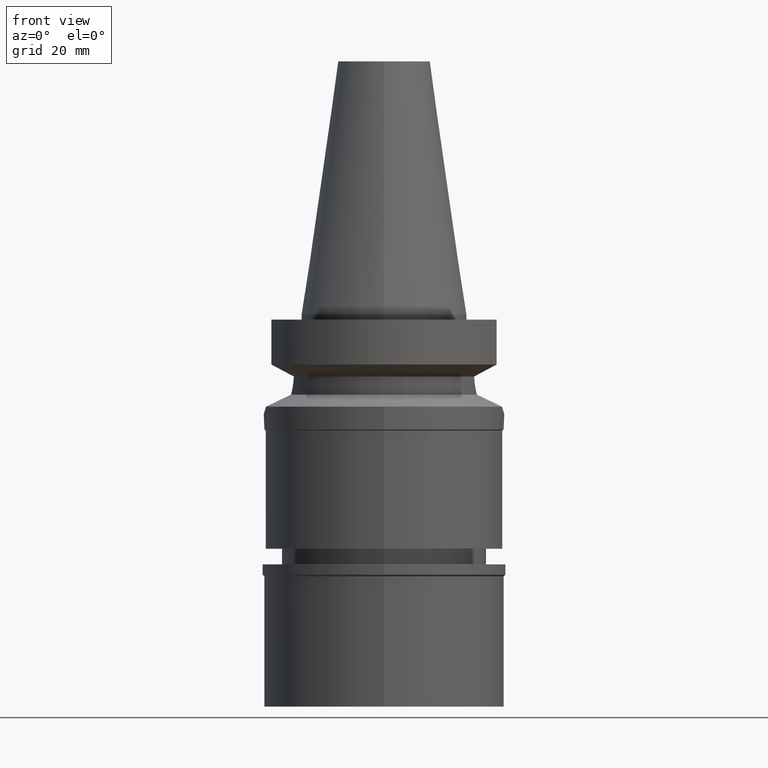
[diagram: clean part render]
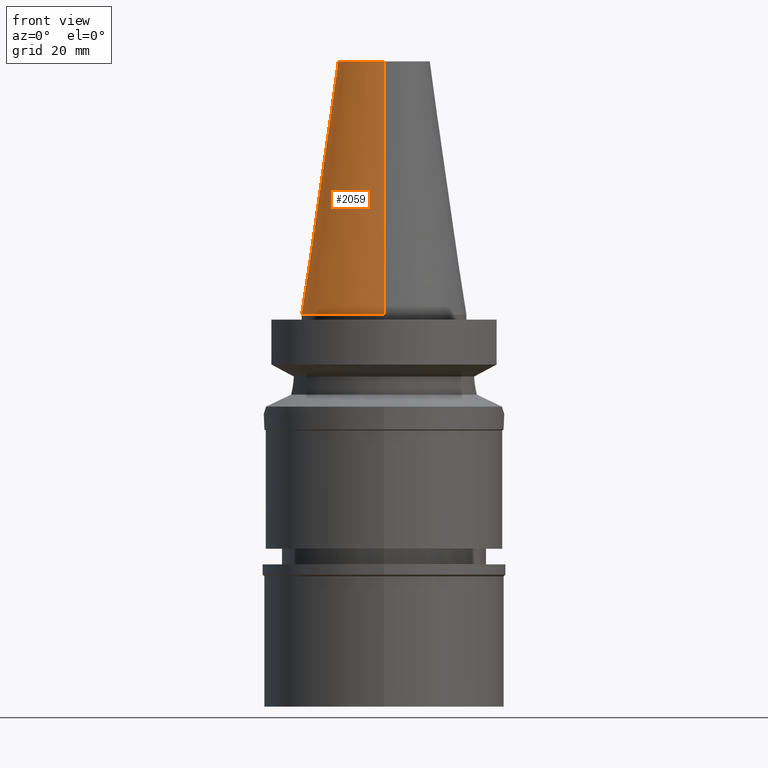
[diagram: same view with one face highlighted and labeled with its STEP entity id]
A machine part, front view. The second image highlights one B-rep face of the part: STEP entity #2059.
In plain terms, the highlighted conical surface has half-angle 8.297 deg.
Its self-contained STEP definition (entity closure, byte-faithful):
#4 = AXIS2_PLACEMENT_3D ( 'NONE', #77, #325, #524 ) ;
#22 = VERTEX_POINT ( 'NONE', #2491 ) ;
#28 = LINE ( 'NONE', #953, #2293 ) ;
#77 = CARTESIAN_POINT ( 'NONE',  ( 0.0000000000000000000, 0.0000000000000000000, -3.410605131648000255E-13 ) ) ;
#124 = AXIS2_PLACEMENT_3D ( 'NONE', #490, #1642, #217 ) ;
#145 = ORIENTED_EDGE ( 'NONE', *, *, #821, .F. ) ;
#211 = CARTESIAN_POINT ( 'NONE',  ( 0.0000000000000000000, 0.0000000000000000000, 24.19999999999999929 ) ) ;
#217 = DIRECTION ( 'NONE',  ( 0.0000000000000000000, -1.000000000000000000, 0.0000000000000000000 ) ) ;
#282 = EDGE_CURVE ( 'NONE', #2288, #22, #2459, .T. ) ;
#325 = DIRECTION ( 'NONE',  ( 0.0000000000000000000, 0.0000000000000000000, -1.000000000000000000 ) ) ;
#402 = LINE ( 'NONE', #1355, #2257 ) ;
#434 = CARTESIAN_POINT ( 'NONE',  ( 0.0000000000000000000, 15.87500000000000000, -1.527666881883999820E-13 ) ) ;
#465 = DIRECTION ( 'NONE',  ( 0.0000000000000000000, 0.1443043893539925626, -0.9895333461855498891 ) ) ;
#490 = CARTESIAN_POINT ( 'NONE',  ( 0.0000000000000000000, 0.0000000000000000000, 48.39999999999999858 ) ) ;
#524 = DIRECTION ( 'NONE',  ( 0.0000000000000000000, -1.000000000000000000, 0.0000000000000000000 ) ) ;
#708 = CARTESIAN_POINT ( 'NONE',  ( 0.0000000000000000000, -15.87500000000000000, -1.527666881883999820E-13 ) ) ;
#821 = EDGE_CURVE ( 'NONE', #2288, #2092, #402, .T. ) ;
#945 = DIRECTION ( 'NONE',  ( 0.0000000000000000000, 0.0000000000000000000, -1.000000000000000000 ) ) ;
#953 = CARTESIAN_POINT ( 'NONE',  ( 0.0000000000000000000, 8.816791732783000768, 48.39999999999999858 ) ) ;
#1159 = DIRECTION ( 'NONE',  ( 0.0000000000000000000, -0.1443043893539925626, -0.9895333461855498891 ) ) ;
#1172 = AXIS2_PLACEMENT_3D ( 'NONE', #211, #945, #1872 ) ;
#1355 = CARTESIAN_POINT ( 'NONE',  ( 0.0000000000000000000, -8.816791732783000768, 48.39999999999999858 ) ) ;
#1465 = CONICAL_SURFACE ( 'NONE', #1172, 12.34589586639000025, 0.1448099680379422438 ) ;
#1529 = EDGE_CURVE ( 'NONE', #2092, #1906, #1696, .T. ) ;
#1642 = DIRECTION ( 'NONE',  ( 0.0000000000000000000, 0.0000000000000000000, -1.000000000000000000 ) ) ;
#1696 = CIRCLE ( 'NONE', #4, 15.87500000000000000 ) ;
#1872 = DIRECTION ( 'NONE',  ( 0.0000000000000000000, -1.000000000000000000, 0.0000000000000000000 ) ) ;
#1906 = VERTEX_POINT ( 'NONE', #434 ) ;
#1928 = ORIENTED_EDGE ( 'NONE', *, *, #282, .T. ) ;
#1939 = CARTESIAN_POINT ( 'NONE',  ( 0.0000000000000000000, -8.816791732783000768, 48.39999999999999858 ) ) ;
#2057 = FACE_OUTER_BOUND ( 'NONE', #2904, .T. ) ;
#2059 = ADVANCED_FACE ( 'NONE', ( #2057 ), #1465, .T. ) ;
#2092 = VERTEX_POINT ( 'NONE', #708 ) ;
#2228 = EDGE_CURVE ( 'NONE', #22, #1906, #28, .T. ) ;
#2257 = VECTOR ( 'NONE', #1159, 1000.000000000000114 ) ;
#2288 = VERTEX_POINT ( 'NONE', #1939 ) ;
#2293 = VECTOR ( 'NONE', #465, 1000.000000000000114 ) ;
#2366 = ORIENTED_EDGE ( 'NONE', *, *, #2228, .T. ) ;
#2403 = ORIENTED_EDGE ( 'NONE', *, *, #1529, .F. ) ;
#2459 = CIRCLE ( 'NONE', #124, 8.816791732783000768 ) ;
#2491 = CARTESIAN_POINT ( 'NONE',  ( 0.0000000000000000000, 8.816791732783000768, 48.39999999999999858 ) ) ;
#2904 = EDGE_LOOP ( 'NONE', ( #2403, #145, #1928, #2366 ) ) ;